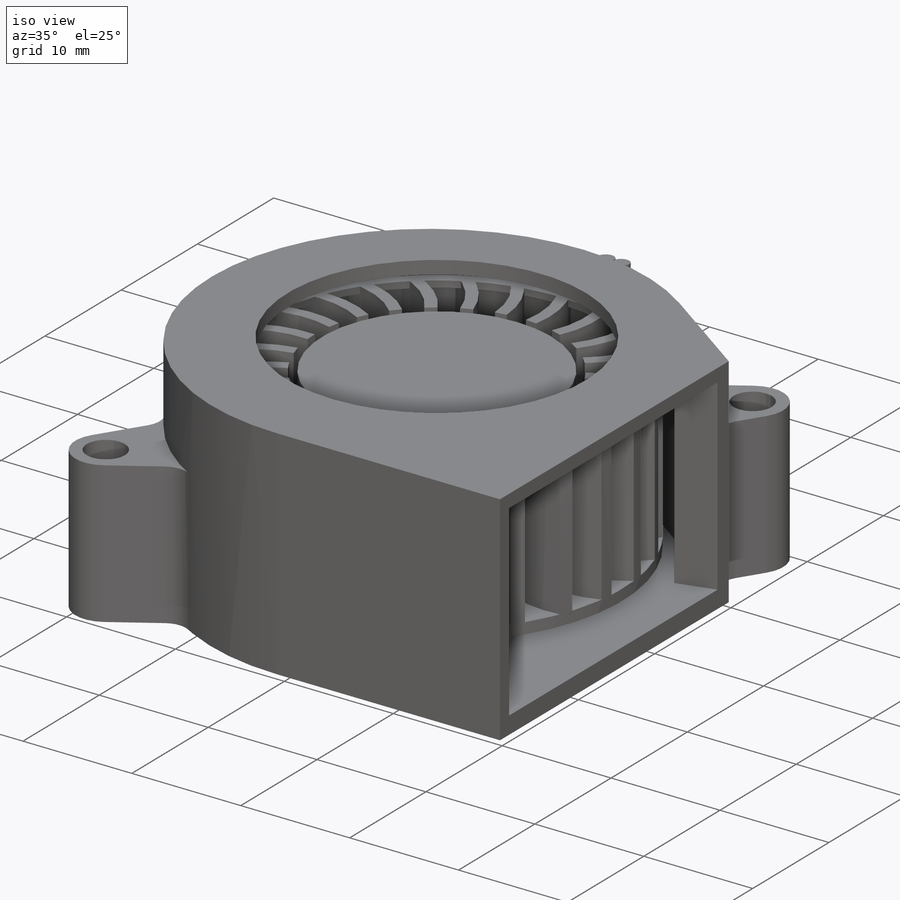
[diagram: iso view]
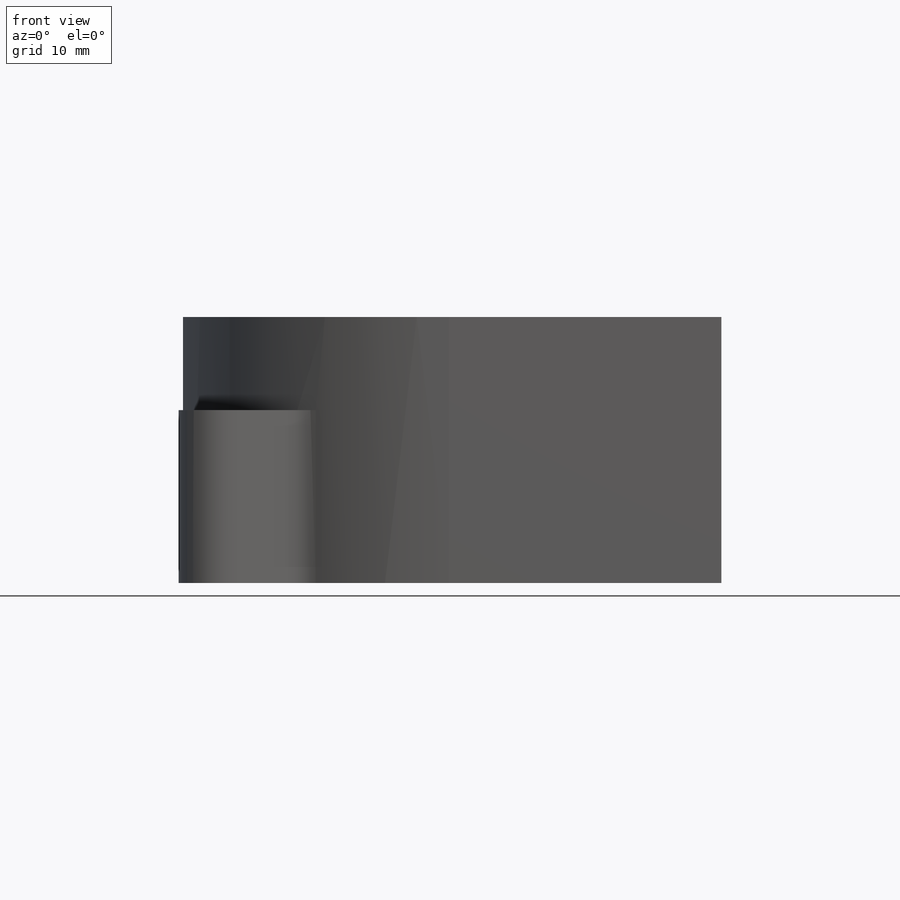
[diagram: front view]
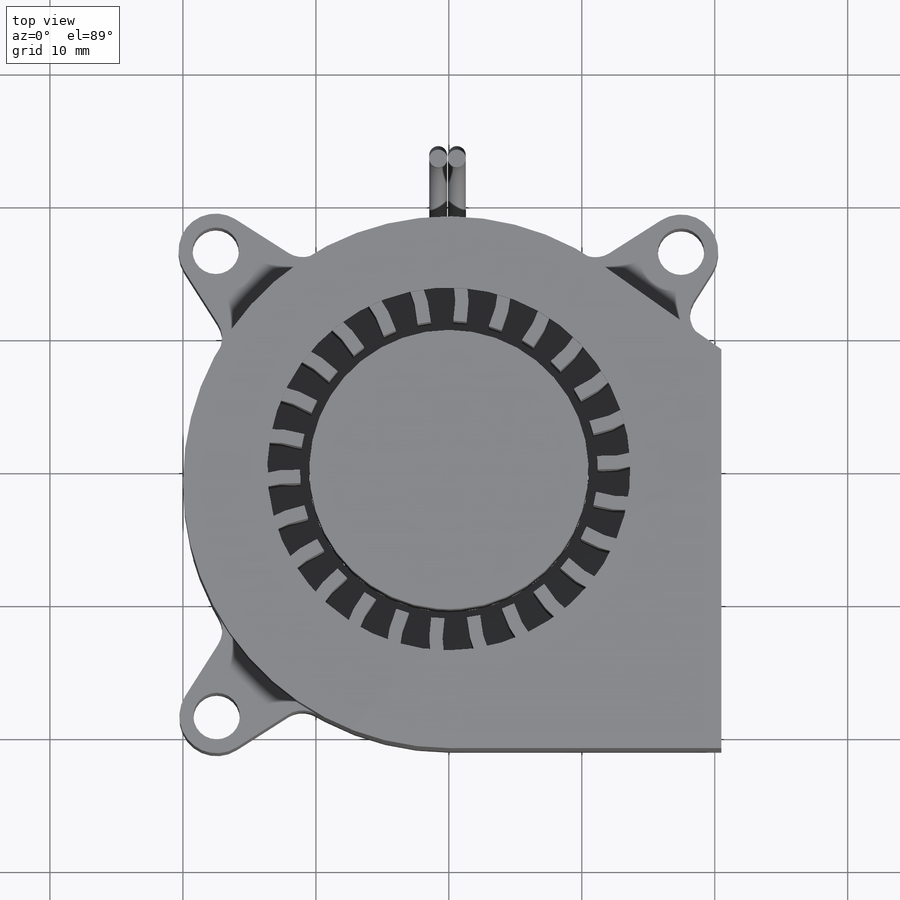
[diagram: top view]
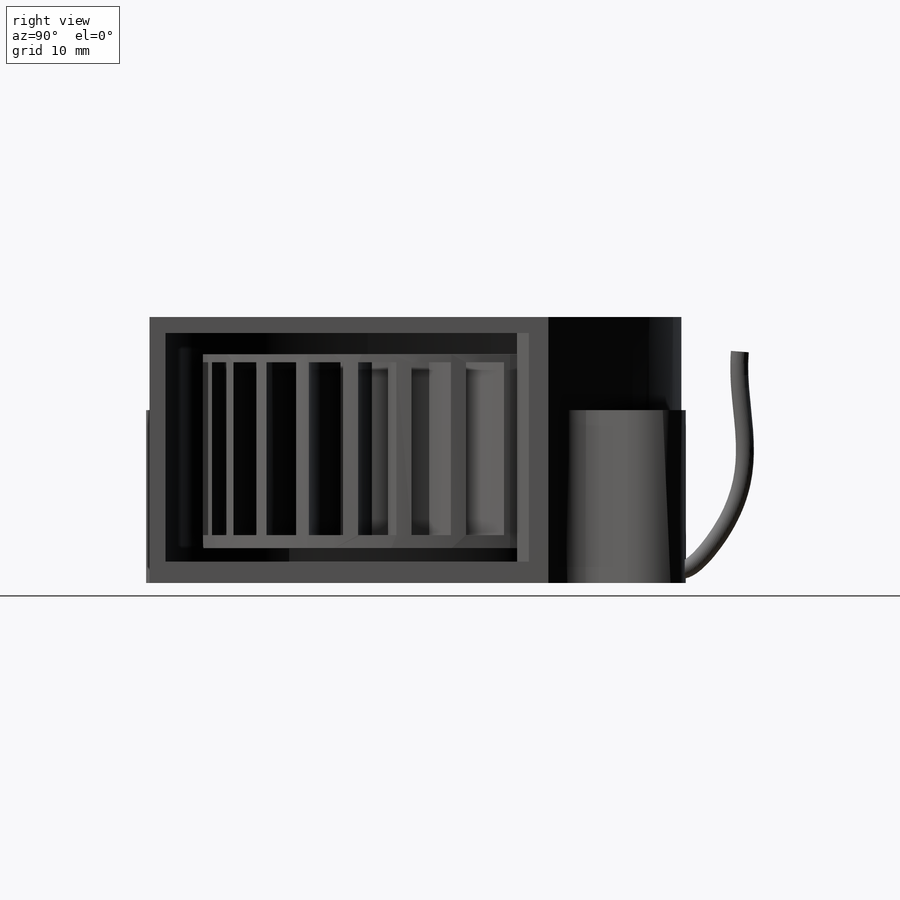
[diagram: right view]
SOLIDWORKS PART (.sldprt)
format: sldprt  version: not decoded by parser v0  size: 1,688,064 bytes
history: native  units: mm
features: sketch x14, extrude x8, plane x6, cut_extrude x4, fillet x2, material x1, shell x1, pattern_circular x1, sweep x1, move_body x1 (+13 scaffold rows collapsed)
feature tree (52):
  scaffold x13  (default folders/planes/origin — collapsed)
  material  "Material <not specified>"
  sketch  "Sketch1"  dims[c1.D1=27.3mm c1.D2=40.0mm c1.D4=40.0mm c2.D4=40.0mm c3.D4=40.0mm c4.D4=40.0mm c4.D5=27.3mm c4.D3=1.0mm c5.D4=5.35mm c5.D5=7.35mm c5.D6=40.5mm c5.D7=30.0mm]
  extrude  "Boss-Extrude1"  Depth=20mm
  shell  "Shell1"  Thickness=1.2mm
  sketch  "Sketch2"
  cut_extrude  "Cut-Extrude1"  [1 undecoded]
  sketch  "Sketch3"  dims[c1.D3=3.5mm c1.D8=5.6mm c1.D1=~27.559731mm c2.D1=45.0deg c2.D2=~17.801699mm c3.D2=90.0deg c3.D4=49.4mm c3.D5=24.7mm c3.D6=35.0mm c3.D7=~5.338987mm c4.D7=25.0deg c4.D9=~5.868186mm c5.D9=25.0deg c5.D10=~5.533303mm c6.D10=25.0deg]
  extrude  "Boss-Extrude2"  Depth=13mm
  fillet  "Fillet1"  Radius=2mm
  sketch  "Sketch4"  dims[c1.D3=21.0mm c1.D4=21.0mm c2.D4=21.0mm c3.D4=21.0mm c4.D4=0.7mm c4.D5=0.7mm c4.D6=0.7mm c4.D1=0.7mm c4.D2=0.7mm]
  cut_extrude  "Cut-Extrude2"  Depth=0.6mm
  sketch  "Sketch5"  dims[D1=21.0mm]
  extrude  "Boss-Extrude3"  Depth=2.8mm
  sketch  "Sketch7"  dims[D1=~17.110002mm]
  extrude  "Boss-Extrude5"  Depth=1mm
  sketch  "Sketch6"  dims[c1.D1=~9.23065mm c2.D1=~9.23065mm c3.D1=~9.23065mm c4.D1=~9.23065mm c5.D1=~9.23065mm c6.D1=~9.23065mm c7.D1=~9.23065mm c7.D3=17.2mm c7.D4=8.0mm c8.D1=1.0mm c8.D5=1.8mm c8.D2=0.7mm c8.D3=6.7mm]
  extrude  "Boss-Extrude4"  [1 undecoded]
  pattern_circular  "CirPattern1"  Count=26 Angle=360deg
  sketch  "Sketch8"  dims[D1=32.0mm]
  extrude  "Boss-Extrude6"  Depth=0.6mm
  sketch  "Sketch9"  dims[D1=3.0mm D2=7.5mm D3=6.5mm]
  cut_extrude  "Cut-Extrude3"  Depth=1.5mm
  sketch  "Sketch10"  dims[D3=1.5mm D4=1.5mm D5=0.85mm D1=0.7mm D2=0.7mm]
  extrude  "Boss-Extrude7"  [1 undecoded]
  plane  "Plane1"  Offset=0.7mm
  sketch  "Sketch11"  dims[D1=1.0mm]
  plane  "Plane2"
  sketch  "Sketch12"  dims[D1=1.35mm]
  sweep  "Sweep1"
  move_body  "Body-Move/Copy1"
  sketch  "Sketch13"  dims[D1=35.9mm D2=11.0mm]
  cut_extrude  "Cut-Extrude4"  Depth=4.2mm
  fillet  "Fillet2"  Radius=1mm
  sketch  "Sketch14"
  extrude  "Boss-Extrude8"  [1 undecoded]
  plane  "Plane3"
  plane  "Plane4"
  plane  "Plane5"
  plane  "Plane6"
decode coverage: 24 of 32 modeling features carry decoded parameters
note: ~ marks probable driven/reference dimensions
note: 4 parameter values undecoded
summary: no parameter record found for 4 features
note: suppression state not decoded; provenance and decode notes live in map.json
